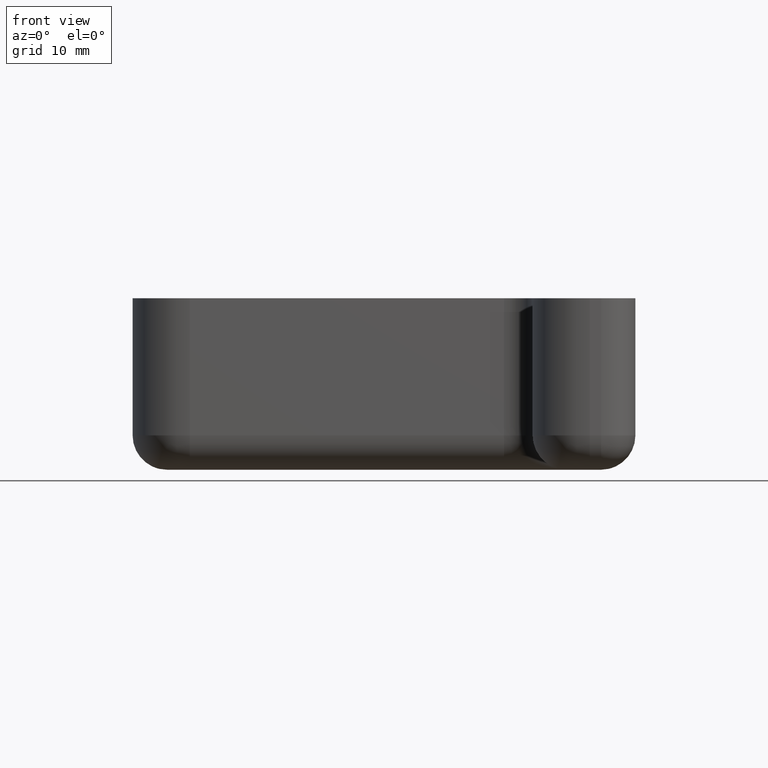
[diagram: clean part render]
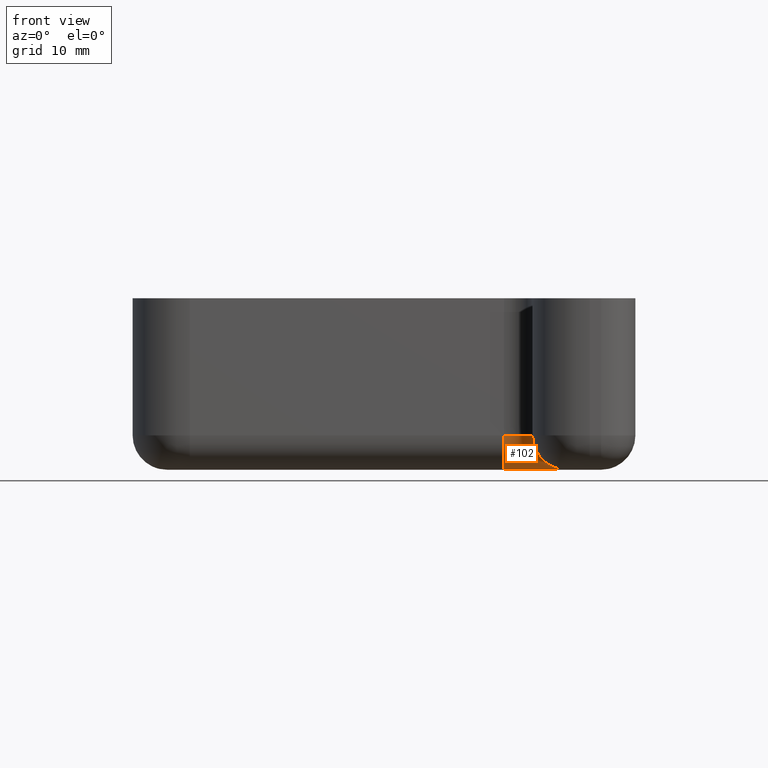
[diagram: same view with one face highlighted and labeled with its STEP entity id]
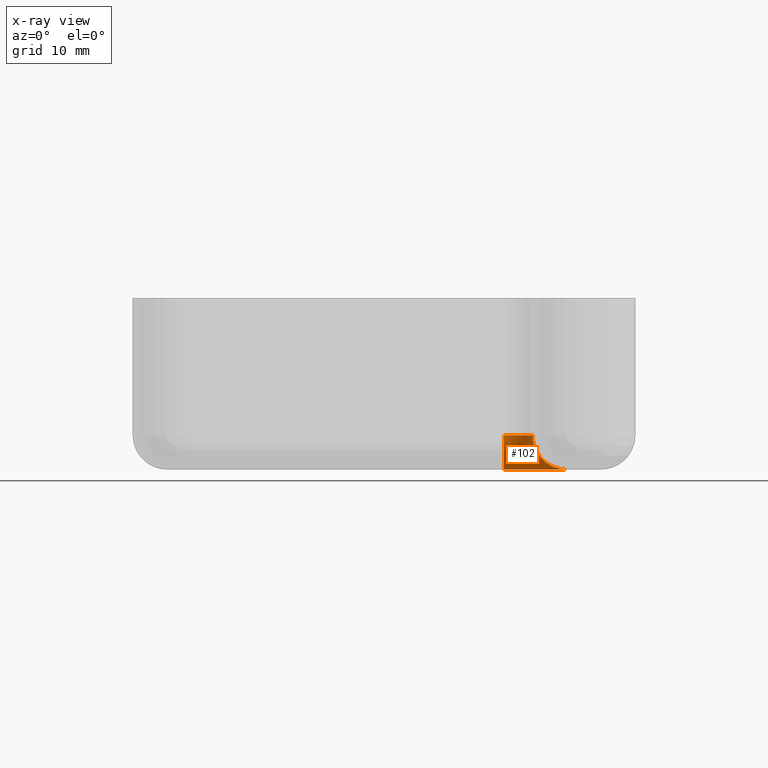
[diagram: x-ray of the same camera — body ghosted, the highlighted face saturated]
A machine part, front view. The second image highlights one B-rep face of the part: STEP entity #102.
The next image is the same camera in x-ray: the body ghosted, the highlighted face saturated — about 0% of this face is hidden behind the body in this view.
In plain terms, the highlighted toroidal blend (fillet) surface has major radius 5.5 mm and minor (blend) radius 3 mm.
Its self-contained STEP definition (entity closure, byte-faithful):
#102 = ADVANCED_FACE( '', ( #170 ), #171, .T. );
#170 = FACE_OUTER_BOUND( '', #293, .T. );
#171 = TOROIDAL_SURFACE( '', #294, 5.50000000000000, 3.00000000000000 );
#293 = EDGE_LOOP( '', ( #530, #531, #532, #533 ) );
#294 = AXIS2_PLACEMENT_3D( '', #534, #535, #536 );
#530 = ORIENTED_EDGE( '', *, *, #697, .T. );
#531 = ORIENTED_EDGE( '', *, *, #682, .F. );
#532 = ORIENTED_EDGE( '', *, *, #695, .F. );
#533 = ORIENTED_EDGE( '', *, *, #670, .F. );
#534 = CARTESIAN_POINT( '', ( -9.50000000000001, -9.50000000000000, -12.0000000000000 ) );
#535 = DIRECTION( '', ( 0.000000000000000, 0.000000000000000, 1.00000000000000 ) );
#536 = DIRECTION( '', ( -1.00000000000000, 1.22460635382238E-016, 0.000000000000000 ) );
#670 = EDGE_CURVE( '', #805, #808, #809, .F. );
#682 = EDGE_CURVE( '', #827, #829, #830, .T. );
#695 = EDGE_CURVE( '', #808, #827, #845, .T. );
#697 = EDGE_CURVE( '', #805, #829, #847, .T. );
#805 = VERTEX_POINT( '', #987 );
#808 = VERTEX_POINT( '', #992 );
#809 = CIRCLE( '', #993, 2.50000000000000 );
#827 = VERTEX_POINT( '', #1019 );
#829 = VERTEX_POINT( '', #1022 );
#830 = CIRCLE( '', #1023, 5.50000000000000 );
#845 = CIRCLE( '', #1040, 3.00000000000000 );
#847 = CIRCLE( '', #1042, 3.00000000000000 );
#987 = CARTESIAN_POINT( '', ( -9.50000000000004, -7.00000000000001, -12.0000000000000 ) );
#992 = CARTESIAN_POINT( '', ( -7.00000000000000, -9.50000000000000, -12.0000000000000 ) );
#993 = AXIS2_PLACEMENT_3D( '', #1161, #1162, #1163 );
#1019 = CARTESIAN_POINT( '', ( -4.00000000000000, -9.50000000000000, -15.0000000000000 ) );
#1022 = CARTESIAN_POINT( '', ( -9.50000000000007, -4.00000000000001, -15.0000000000000 ) );
#1023 = AXIS2_PLACEMENT_3D( '', #1179, #1180, #1181 );
#1040 = AXIS2_PLACEMENT_3D( '', #1214, #1215, #1216 );
#1042 = AXIS2_PLACEMENT_3D( '', #1220, #1221, #1222 );
#1161 = CARTESIAN_POINT( '', ( -9.50000000000001, -9.50000000000000, -12.0000000000000 ) );
#1162 = DIRECTION( '', ( 0.000000000000000, 0.000000000000000, 1.00000000000000 ) );
#1163 = DIRECTION( '', ( -1.00000000000000, 1.22460635382238E-016, 0.000000000000000 ) );
#1179 = CARTESIAN_POINT( '', ( -9.50000000000001, -9.50000000000000, -15.0000000000000 ) );
#1180 = DIRECTION( '', ( 0.000000000000000, 0.000000000000000, 1.00000000000000 ) );
#1181 = DIRECTION( '', ( -1.00000000000000, 1.22460635382238E-016, 0.000000000000000 ) );
#1214 = CARTESIAN_POINT( '', ( -4.00000000000000, -9.50000000000000, -12.0000000000000 ) );
#1215 = DIRECTION( '', ( -1.22460635382238E-016, -1.00000000000000, 0.000000000000000 ) );
#1216 = DIRECTION( '', ( 0.000000000000000, 0.000000000000000, 1.00000000000000 ) );
#1220 = CARTESIAN_POINT( '', ( -9.50000000000004, -4.00000000000001, -12.0000000000000 ) );
#1221 = DIRECTION( '', ( 1.00000000000000, -1.22460635382238E-016, -1.27213054904966E-014 ) );
#1222 = DIRECTION( '', ( 1.27213054904966E-014, -1.55785915325776E-030, 1.00000000000000 ) );